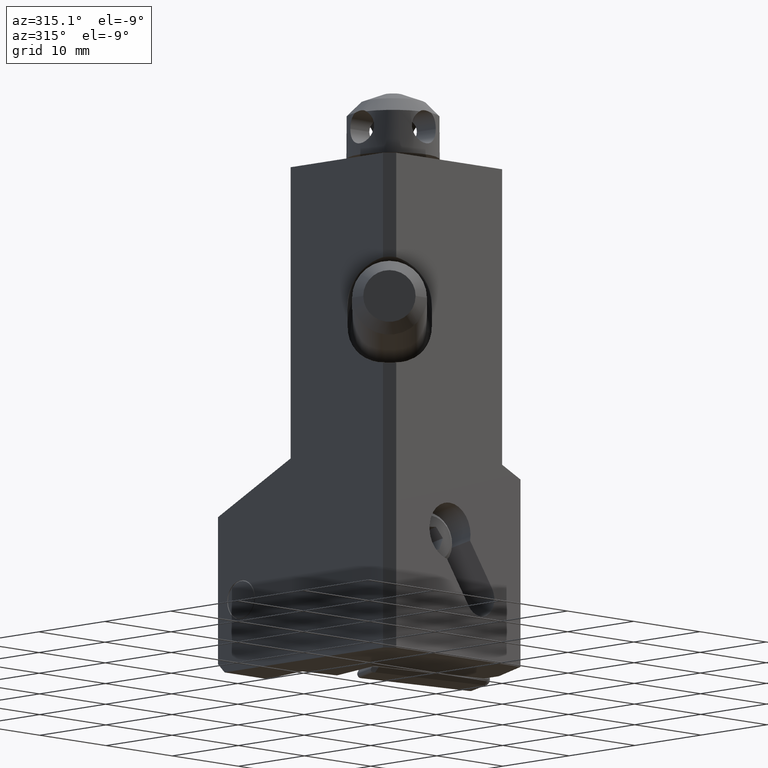
[diagram: clean part render]
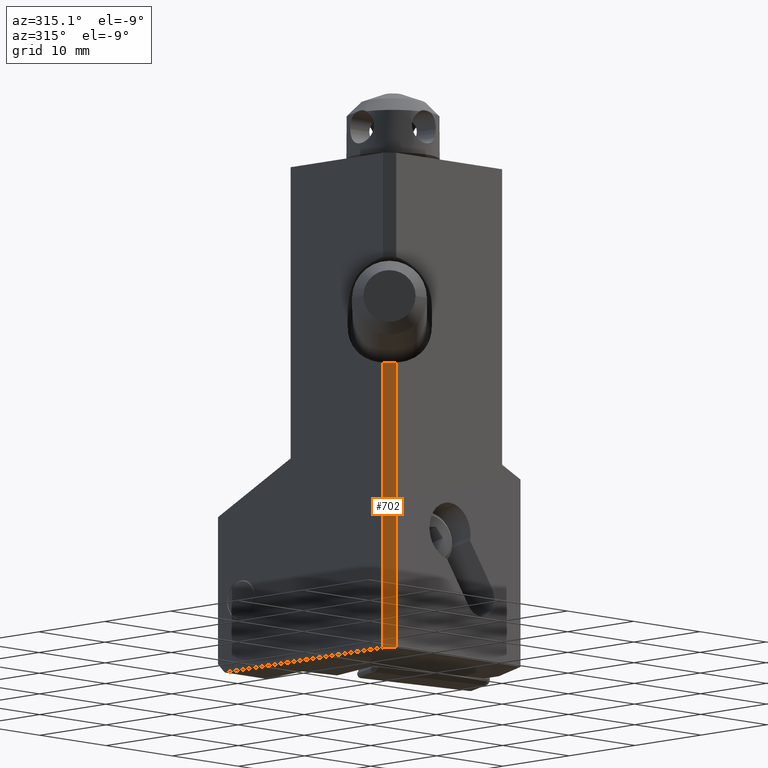
[diagram: same view with one face highlighted and labeled with its STEP entity id]
A machine part, auxiliary view. The second image highlights one B-rep face of the part: STEP entity #702.
In plain terms, the highlighted planar face has unit normal (0.7071, 0.7071, 0).
Its self-contained STEP definition (entity closure, byte-faithful):
#295=FACE_OUTER_BOUND('',#1082,.T.);
#509=CIRCLE('',#4266,4.5);
#702=ADVANCED_FACE('',(#295),#934,.F.);
#934=PLANE('',#4279);
#1082=EDGE_LOOP('',(#1394,#1395,#1396,#1397));
#1394=ORIENTED_EDGE('',*,*,#2939,.T.);
#1395=ORIENTED_EDGE('',*,*,#2942,.T.);
#1396=ORIENTED_EDGE('',*,*,#2899,.F.);
#1397=ORIENTED_EDGE('',*,*,#2915,.F.);
#2526=VERTEX_POINT('',#5947);
#2527=VERTEX_POINT('',#5948);
#2542=VERTEX_POINT('',#5979);
#2561=VERTEX_POINT('',#6088);
#2899=EDGE_CURVE('',#2526,#2527,#3490,.T.);
#2915=EDGE_CURVE('',#2542,#2526,#509,.T.);
#2939=EDGE_CURVE('',#2542,#2561,#3513,.T.);
#2942=EDGE_CURVE('',#2561,#2527,#3514,.T.);
#3490=LINE('',#5946,#3792);
#3513=LINE('',#6089,#3815);
#3514=LINE('',#6095,#3816);
#3792=VECTOR('',#4749,1.);
#3815=VECTOR('',#4806,1.);
#3816=VECTOR('',#4813,1.);
#4266=AXIS2_PLACEMENT_3D('',#5980,#4773,#4774);
#4279=AXIS2_PLACEMENT_3D('',#6096,#4814,#4815);
#4749=DIRECTION('',(0.,0.,-1.));
#4773=DIRECTION('',(-0.707106781186548,-0.707106781186548,0.));
#4774=DIRECTION('',(-0.111111111111101,0.111111111111101,-0.987577157479512));
#4806=DIRECTION('',(0.,0.,-1.));
#4813=DIRECTION('',(0.707106781186547,-0.707106781186547,0.));
#4814=DIRECTION('',(0.707106781186547,0.707106781186547,0.));
#4815=DIRECTION('',(0.707106781186547,-0.707106781186547,0.));
#5946=CARTESIAN_POINT('',(-16.,1.057117356614E-13,-22.69409720866));
#5947=CARTESIAN_POINT('',(-16.,7.91477705134735E-14,-22.6940972086577));
#5948=CARTESIAN_POINT('',(-16.,0.,-53.58234527097));
#5979=CARTESIAN_POINT('',(-17.,1.,-22.6940972086579));
#5980=CARTESIAN_POINT('',(-16.5,0.5,-18.25));
#6088=CARTESIAN_POINT('',(-17.,1.,-53.58234527097));
#6089=CARTESIAN_POINT('',(-17.,1.,-22.69409720866));
#6095=CARTESIAN_POINT('',(-17.,1.,-53.58234527097));
#6096=CARTESIAN_POINT('',(-16.5,0.5,-38.13822123981));